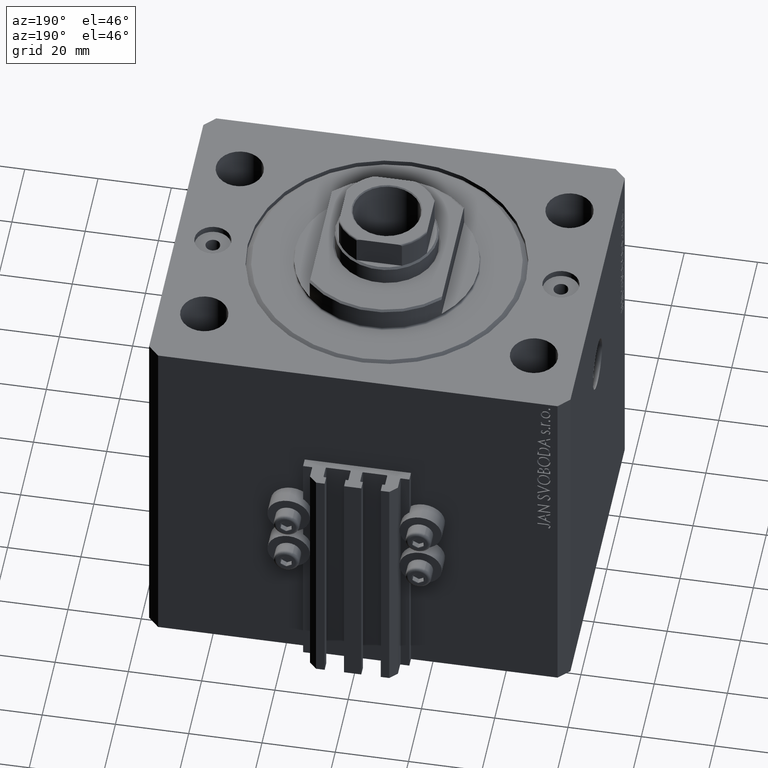
[diagram: clean part render]
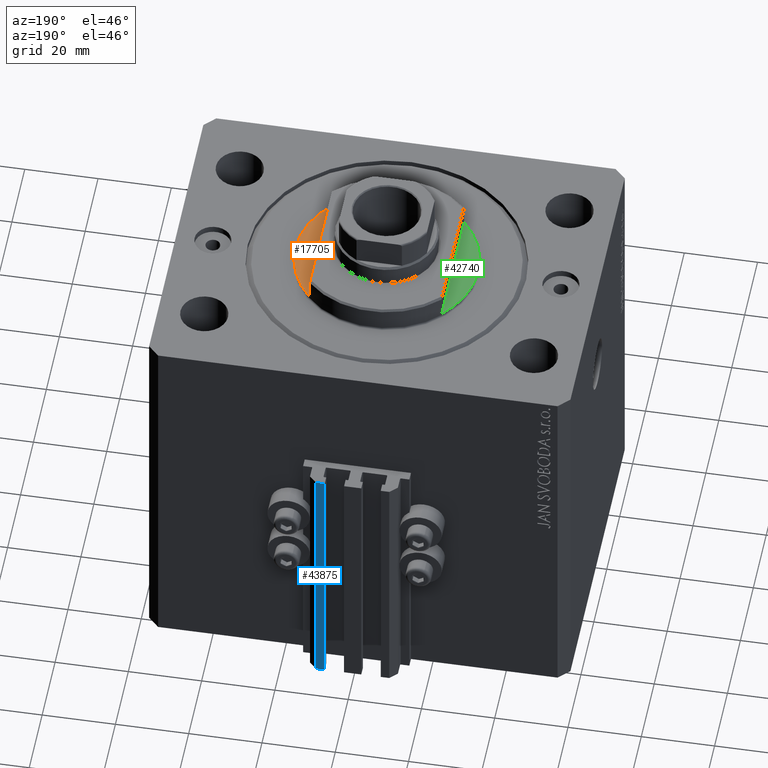
[diagram: same view with three faces highlighted in distinct colors, each labeled with its STEP entity id]
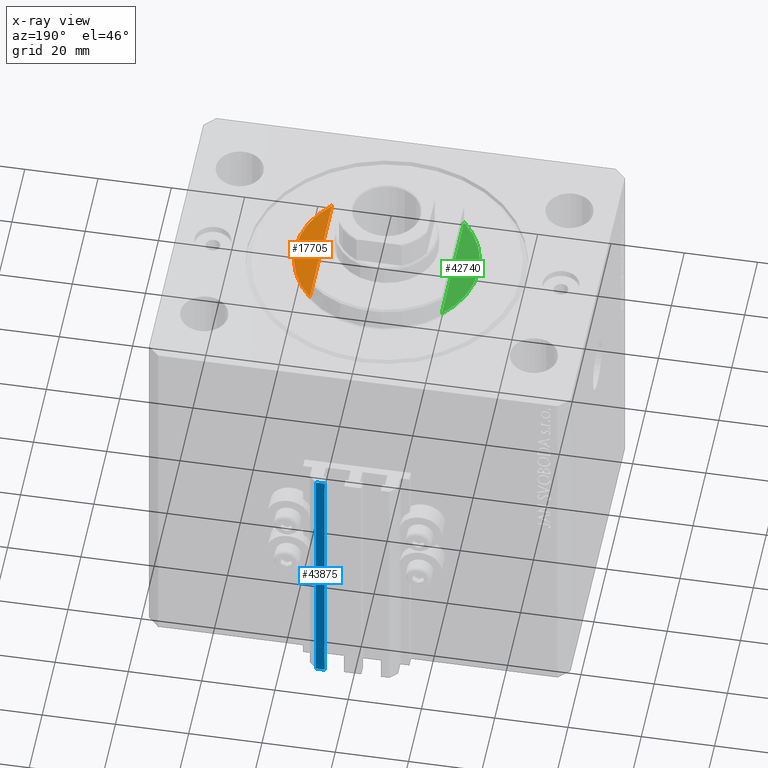
[diagram: x-ray of the same camera — body ghosted, the three highlighted faces saturated]
A machine part, auxiliary view with three faces highlighted in distinct colors.
The next image is the same camera in x-ray (body ghosted, the three faces saturated) — at least one of them is partly hidden behind the body in this view.
Their STEP definitions:

[orange] entity #17705 — the highlighted planar face has unit normal (0, 0, 1).
#1450 = ORIENTED_EDGE ( 'NONE', *, *, #33355, .T. ) ;
#1496 = EDGE_CURVE ( 'NONE', #5568, #27157, #28790, .T. ) ;
#3417 = DIRECTION ( 'NONE',  ( -0.000000000000000000, -1.000000000000000000, -0.000000000000000000 ) ) ;
#4648 = CARTESIAN_POINT ( 'NONE',  ( 0.000000000000000000, 0.000000000000000000, -1.000000000000000000 ) ) ;
#5568 = VERTEX_POINT ( 'NONE', #44524 ) ;
#5848 = EDGE_CURVE ( 'NONE', #27157, #24618, #10578, .T. ) ;
#6277 = AXIS2_PLACEMENT_3D ( 'NONE', #16352, #8944, #34475 ) ;
#6979 = CIRCLE ( 'NONE', #35147, 25.00000000000000000 ) ;
#8106 = ORIENTED_EDGE ( 'NONE', *, *, #5848, .T. ) ;
#8708 = PLANE ( 'NONE',  #6277 ) ;
#8944 = DIRECTION ( 'NONE',  ( 0.000000000000000000, 0.000000000000000000, -1.000000000000000000 ) ) ;
#9951 = ORIENTED_EDGE ( 'NONE', *, *, #1496, .T. ) ;
#10578 = LINE ( 'NONE', #25130, #43400 ) ;
#11170 = DIRECTION ( 'NONE',  ( 0.000000000000000000, 0.000000000000000000, -1.000000000000000000 ) ) ;
#16352 = CARTESIAN_POINT ( 'NONE',  ( 0.000000000000000000, 0.000000000000000000, -1.000000000000000000 ) ) ;
#17705 = ADVANCED_FACE ( 'NONE', ( #46173 ), #8708, .T. ) ;
#24618 = VERTEX_POINT ( 'NONE', #30958 ) ;
#25130 = CARTESIAN_POINT ( 'NONE',  ( -18.00000000000000000, -41.24318125460256113, -1.000000000000000000 ) ) ;
#25482 = CARTESIAN_POINT ( 'NONE',  ( 0.000000000000000000, 0.000000000000000000, -1.000000000000000000 ) ) ;
#25724 = CARTESIAN_POINT ( 'NONE',  ( -18.00000000000000000, 17.34935157289747920, -1.000000000000000000 ) ) ;
#27157 = VERTEX_POINT ( 'NONE', #25724 ) ;
#28790 = CIRCLE ( 'NONE', #47090, 25.00000000000000000 ) ;
#29025 = DIRECTION ( 'NONE',  ( 0.000000000000000000, 0.000000000000000000, -1.000000000000000000 ) ) ;
#30958 = CARTESIAN_POINT ( 'NONE',  ( -18.00000000000000000, -17.34935157289747920, -1.000000000000000000 ) ) ;
#32107 = EDGE_LOOP ( 'NONE', ( #1450, #9951, #8106 ) ) ;
#33355 = EDGE_CURVE ( 'NONE', #24618, #5568, #6979, .T. ) ;
#34475 = DIRECTION ( 'NONE',  ( -1.000000000000000000, 0.000000000000000000, -0.000000000000000000 ) ) ;
#35147 = AXIS2_PLACEMENT_3D ( 'NONE', #25482, #11170, #40035 ) ;
#40035 = DIRECTION ( 'NONE',  ( -1.000000000000000000, 0.000000000000000000, 0.000000000000000000 ) ) ;
#43400 = VECTOR ( 'NONE', #3417, 1000.000000000000000 ) ;
#43824 = DIRECTION ( 'NONE',  ( -1.000000000000000000, 0.000000000000000000, 0.000000000000000000 ) ) ;
#44524 = CARTESIAN_POINT ( 'NONE',  ( -25.00000000000000000, 3.061616997868383043E-15, -1.000000000000000000 ) ) ;
#46173 = FACE_OUTER_BOUND ( 'NONE', #32107, .T. ) ;
#47090 = AXIS2_PLACEMENT_3D ( 'NONE', #4648, #29025, #43824 ) ;

[blue] entity #43875 — the highlighted planar face has unit normal (0, 1, 0).
#2565 = FACE_OUTER_BOUND ( 'NONE', #24953, .T. ) ;
#3042 = PLANE ( 'NONE',  #32425 ) ;
#7056 = EDGE_CURVE ( 'NONE', #32463, #34255, #8698, .T. ) ;
#7773 = CARTESIAN_POINT ( 'NONE',  ( 9.999999999999998224, 53.00000000000000711, -33.00000000000000000 ) ) ;
#8460 = CARTESIAN_POINT ( 'NONE',  ( 7.649999999999998579, 53.00000000000000711, -105.0000000000000000 ) ) ;
#8698 = LINE ( 'NONE', #12059, #39599 ) ;
#8731 = VERTEX_POINT ( 'NONE', #8460 ) ;
#9729 = DIRECTION ( 'NONE',  ( 0.000000000000000000, 0.000000000000000000, 1.000000000000000000 ) ) ;
#11817 = VERTEX_POINT ( 'NONE', #21712 ) ;
#12059 = CARTESIAN_POINT ( 'NONE',  ( 9.999999999999998224, 53.00000000000000711, -105.0000000000000000 ) ) ;
#13739 = LINE ( 'NONE', #28534, #17928 ) ;
#13936 = CARTESIAN_POINT ( 'NONE',  ( 7.649999999999998579, 53.00000000000000711, -105.0000000000000000 ) ) ;
#14977 = EDGE_CURVE ( 'NONE', #8731, #11817, #17513, .T. ) ;
#17513 = LINE ( 'NONE', #13936, #43566 ) ;
#17617 = DIRECTION ( 'NONE',  ( 0.000000000000000000, 1.000000000000000000, -0.000000000000000000 ) ) ;
#17928 = VECTOR ( 'NONE', #24479, 1000.000000000000000 ) ;
#18009 = ORIENTED_EDGE ( 'NONE', *, *, #20324, .T. ) ;
#18222 = DIRECTION ( 'NONE',  ( 0.000000000000000000, 0.000000000000000000, 1.000000000000000000 ) ) ;
#18781 = VECTOR ( 'NONE', #27461, 1000.000000000000000 ) ;
#20324 = EDGE_CURVE ( 'NONE', #32463, #8731, #45843, .T. ) ;
#21712 = CARTESIAN_POINT ( 'NONE',  ( 7.649999999999998579, 53.00000000000000711, -33.00000000000000000 ) ) ;
#24479 = DIRECTION ( 'NONE',  ( -1.000000000000000000, 0.000000000000000000, 0.000000000000000000 ) ) ;
#24953 = EDGE_LOOP ( 'NONE', ( #43684, #31585, #18009, #36435 ) ) ;
#27461 = DIRECTION ( 'NONE',  ( -1.000000000000000000, 0.000000000000000000, 0.000000000000000000 ) ) ;
#27699 = CARTESIAN_POINT ( 'NONE',  ( 9.999999999999998224, 53.00000000000000711, -105.0000000000000000 ) ) ;
#28105 = CARTESIAN_POINT ( 'NONE',  ( 9.999999999999998224, 53.00000000000000711, -105.0000000000000000 ) ) ;
#28185 = DIRECTION ( 'NONE',  ( 0.000000000000000000, 0.000000000000000000, 1.000000000000000000 ) ) ;
#28534 = CARTESIAN_POINT ( 'NONE',  ( 9.999999999999998224, 53.00000000000000711, -33.00000000000000000 ) ) ;
#30224 = CARTESIAN_POINT ( 'NONE',  ( 9.999999999999998224, 53.00000000000000711, -105.0000000000000000 ) ) ;
#31585 = ORIENTED_EDGE ( 'NONE', *, *, #7056, .F. ) ;
#32425 = AXIS2_PLACEMENT_3D ( 'NONE', #28105, #17617, #9729 ) ;
#32463 = VERTEX_POINT ( 'NONE', #30224 ) ;
#34255 = VERTEX_POINT ( 'NONE', #7773 ) ;
#36435 = ORIENTED_EDGE ( 'NONE', *, *, #14977, .T. ) ;
#39599 = VECTOR ( 'NONE', #28185, 1000.000000000000000 ) ;
#43566 = VECTOR ( 'NONE', #18222, 1000.000000000000000 ) ;
#43684 = ORIENTED_EDGE ( 'NONE', *, *, #47185, .F. ) ;
#43875 = ADVANCED_FACE ( 'NONE', ( #2565 ), #3042, .T. ) ;
#45843 = LINE ( 'NONE', #27699, #18781 ) ;
#47185 = EDGE_CURVE ( 'NONE', #34255, #11817, #13739, .T. ) ;

[green] entity #42740 — the highlighted planar face has unit normal (0, 0, 1).
#1657 = EDGE_LOOP ( 'NONE', ( #18875, #42181, #43932 ) ) ;
#5675 = AXIS2_PLACEMENT_3D ( 'NONE', #31158, #46681, #9196 ) ;
#9186 = EDGE_CURVE ( 'NONE', #11076, #36324, #45032, .T. ) ;
#9196 = DIRECTION ( 'NONE',  ( -1.000000000000000000, 0.000000000000000000, 0.000000000000000000 ) ) ;
#9997 = DIRECTION ( 'NONE',  ( 0.000000000000000000, -1.000000000000000000, -0.000000000000000000 ) ) ;
#11076 = VERTEX_POINT ( 'NONE', #37869 ) ;
#13595 = LINE ( 'NONE', #28139, #38308 ) ;
#14111 = AXIS2_PLACEMENT_3D ( 'NONE', #16018, #15788, #41536 ) ;
#15788 = DIRECTION ( 'NONE',  ( 0.000000000000000000, 0.000000000000000000, -1.000000000000000000 ) ) ;
#16018 = CARTESIAN_POINT ( 'NONE',  ( 0.000000000000000000, 0.000000000000000000, -1.000000000000000000 ) ) ;
#18875 = ORIENTED_EDGE ( 'NONE', *, *, #41471, .T. ) ;
#19059 = CARTESIAN_POINT ( 'NONE',  ( 0.000000000000000000, 0.000000000000000000, -1.000000000000000000 ) ) ;
#25394 = CARTESIAN_POINT ( 'NONE',  ( 18.00000000000000000, -17.34935157289747920, -1.000000000000000000 ) ) ;
#28139 = CARTESIAN_POINT ( 'NONE',  ( 18.00000000000000000, -41.24318125460256113, -1.000000000000000000 ) ) ;
#31158 = CARTESIAN_POINT ( 'NONE',  ( 0.000000000000000000, 0.000000000000000000, -1.000000000000000000 ) ) ;
#34139 = PLANE ( 'NONE',  #14111 ) ;
#36324 = VERTEX_POINT ( 'NONE', #25394 ) ;
#36764 = VERTEX_POINT ( 'NONE', #46287 ) ;
#37513 = EDGE_CURVE ( 'NONE', #36764, #36324, #13595, .T. ) ;
#37869 = CARTESIAN_POINT ( 'NONE',  ( 25.00000000000000000, 0.000000000000000000, -1.000000000000000000 ) ) ;
#38308 = VECTOR ( 'NONE', #9997, 1000.000000000000000 ) ;
#38652 = FACE_OUTER_BOUND ( 'NONE', #1657, .T. ) ;
#41471 = EDGE_CURVE ( 'NONE', #36764, #11076, #43032, .T. ) ;
#41536 = DIRECTION ( 'NONE',  ( 1.000000000000000000, 0.000000000000000000, 0.000000000000000000 ) ) ;
#42181 = ORIENTED_EDGE ( 'NONE', *, *, #9186, .T. ) ;
#42740 = ADVANCED_FACE ( 'NONE', ( #38652 ), #34139, .T. ) ;
#43032 = CIRCLE ( 'NONE', #5675, 25.00000000000000000 ) ;
#43659 = DIRECTION ( 'NONE',  ( 0.000000000000000000, 0.000000000000000000, -1.000000000000000000 ) ) ;
#43932 = ORIENTED_EDGE ( 'NONE', *, *, #37513, .F. ) ;
#44372 = DIRECTION ( 'NONE',  ( -1.000000000000000000, 0.000000000000000000, 0.000000000000000000 ) ) ;
#45032 = CIRCLE ( 'NONE', #45779, 25.00000000000000000 ) ;
#45779 = AXIS2_PLACEMENT_3D ( 'NONE', #19059, #43659, #44372 ) ;
#46287 = CARTESIAN_POINT ( 'NONE',  ( 18.00000000000000000, 17.34935157289747920, -1.000000000000000000 ) ) ;
#46681 = DIRECTION ( 'NONE',  ( 0.000000000000000000, 0.000000000000000000, -1.000000000000000000 ) ) ;